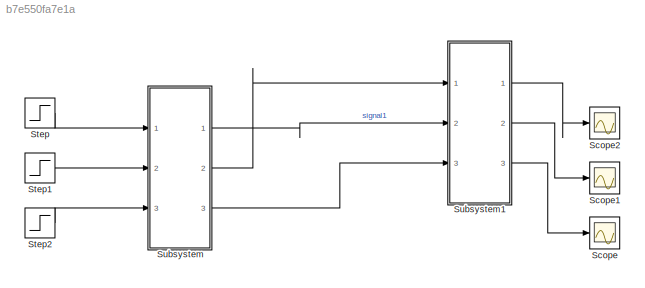
MODEL slx_b7e550fa7e1a
KIND model
CONFIG AbsTol = auto
CONFIG EnableMultiTasking = off
CONFIG FixedStep = auto
CONFIG MaxStep = auto
CONFIG MinStep = auto
CONFIG RelTol = 1e-3
CONFIG SampleTimeConstraint = Unconstrained
CONFIG SolverName = VariableStepAuto
CONFIG StartTime = 0.0
CONFIG StopTime = 10.0
BLOCK [Scope] Scope
  Floating = off
  NumInputPorts = 1
  Ports = [1]
  ScopeSpecificationString = Simulink.scopes.TimeScopeBlockCfg('CurrentConfiguration', extmgr.ConfigurationSet(extmgr.Configuration('Core','General UI',true),extmgr.Configuration('Core','Source UI',true),extmgr.Configuration('Sources','WiredSimulink',true),extmgr.Configuration('Visuals','Time Domain',true),extmgr.Configuration('Tools','Plot Navigation',true),extmgr.Configuration('Tools','Measurements',true)),'Version','2021a'...<+1ch>
BLOCK [Scope] Scope1
  Floating = off
  NumInputPorts = 1
  Ports = [1]
  ScopeSpecificationString = Simulink.scopes.TimeScopeBlockCfg('CurrentConfiguration', extmgr.ConfigurationSet(extmgr.Configuration('Core','General UI',true),extmgr.Configuration('Core','Source UI',true),extmgr.Configuration('Sources','WiredSimulink',true,'DataLoggingVariableName','ScopeData1'),extmgr.Configuration('Visuals','Time Domain',true),extmgr.Configuration('Tools','Plot Navigation',true),extmgr.Configuration('Tools',...<+40ch>
BLOCK [Scope] Scope2
  Floating = off
  NumInputPorts = 1
  Ports = [1]
  ScopeSpecificationString = Simulink.scopes.TimeScopeBlockCfg('CurrentConfiguration', extmgr.ConfigurationSet(extmgr.Configuration('Core','General UI',true),extmgr.Configuration('Core','Source UI',true),extmgr.Configuration('Sources','WiredSimulink',true,'DataLoggingVariableName','ScopeData2'),extmgr.Configuration('Visuals','Time Domain',true),extmgr.Configuration('Tools','Plot Navigation',true),extmgr.Configuration('Tools',...<+40ch>
BLOCK [Step] Step
  SampleTime = 0
BLOCK [Step] Step1
  SampleTime = 0
BLOCK [Step] Step2
  SampleTime = 0
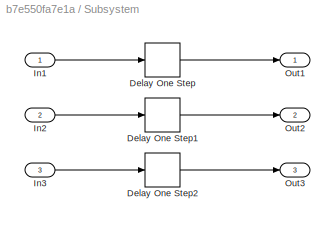
BLOCK [SubSystem] Subsystem
  Ports = [3, 3]
  RequestExecContextInheritance = off
BLOCK [Delay] Subsystem/Delay One Step
  DelayLength = 1
  InputPortMap = u0
  Ports = [1, 1]
BLOCK [Delay] Subsystem/Delay One Step1
  InputPortMap = u0
  Ports = [1, 1]
BLOCK [Delay] Subsystem/Delay One Step2
  DelayLength = 3
  InputPortMap = u0
  Ports = [1, 1]
BLOCK [Inport] Subsystem/In1
BLOCK [Inport] Subsystem/In2
  Port = 2
BLOCK [Inport] Subsystem/In3
  Port = 3
BLOCK [Outport] Subsystem/Out1
BLOCK [Outport] Subsystem/Out2
  Port = 2
BLOCK [Outport] Subsystem/Out3
  Port = 3
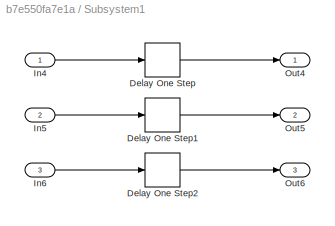
BLOCK [SubSystem] Subsystem1
  Ports = [3, 3]
  RequestExecContextInheritance = off
BLOCK [Delay] Subsystem1/Delay One Step
  DelayLength = 1
  InputPortMap = u0
  Ports = [1, 1]
BLOCK [Delay] Subsystem1/Delay One Step1
  InputPortMap = u0
  Ports = [1, 1]
BLOCK [Delay] Subsystem1/Delay One Step2
  DelayLength = 3
  InputPortMap = u0
  Ports = [1, 1]
BLOCK [Inport] Subsystem1/In4
BLOCK [Inport] Subsystem1/In5
  Port = 2
BLOCK [Inport] Subsystem1/In6
  Port = 3
BLOCK [Outport] Subsystem1/Out4
BLOCK [Outport] Subsystem1/Out5
  Port = 2
BLOCK [Outport] Subsystem1/Out6
  Port = 3
LINE Step1:1 -> Subsystem:2
LINE Step2:1 -> Subsystem:3
LINE Step:1 -> Subsystem:1
LINE Subsystem/Delay One Step1:1 -> Subsystem/Out2:1
LINE Subsystem/Delay One Step2:1 -> Subsystem/Out3:1
LINE Subsystem/Delay One Step:1 -> Subsystem/Out1:1
LINE Subsystem/In1:1 -> Subsystem/Delay One Step:1
LINE Subsystem/In2:1 -> Subsystem/Delay One Step1:1
LINE Subsystem/In3:1 -> Subsystem/Delay One Step2:1
LINE Subsystem1/Delay One Step1:1 -> Subsystem1/Out5:1
LINE Subsystem1/Delay One Step2:1 -> Subsystem1/Out6:1
LINE Subsystem1/Delay One Step:1 -> Subsystem1/Out4:1
LINE Subsystem1/In4:1 -> Subsystem1/Delay One Step:1
LINE Subsystem1/In5:1 -> Subsystem1/Delay One Step1:1
LINE Subsystem1/In6:1 -> Subsystem1/Delay One Step2:1
LINE Subsystem1:1 -> Scope2:1
LINE Subsystem1:2 -> Scope1:1
LINE Subsystem1:3 -> Scope:1
LINE Subsystem:1 -> Subsystem1:2
LINE Subsystem:2 -> Subsystem1:1
LINE Subsystem:3 -> Subsystem1:3
